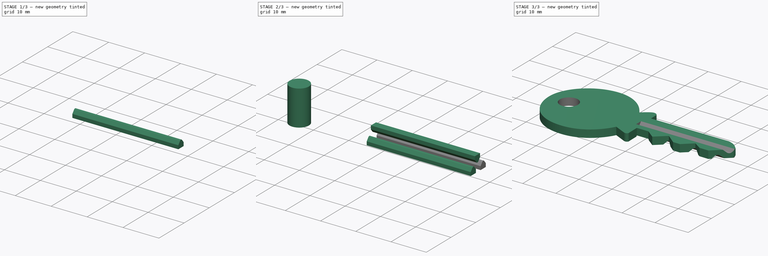
[diagram: build sequence overview — one tinted view per stage of 3, left to right]
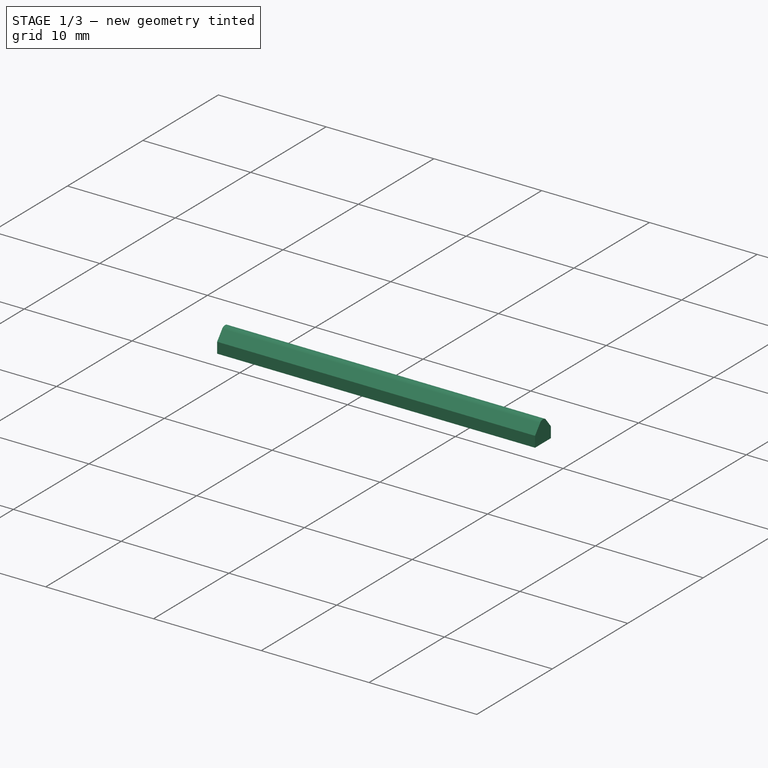
[diagram: stage 1 of 3 — iso view after this stage's code; geometry added in this stage tinted green]
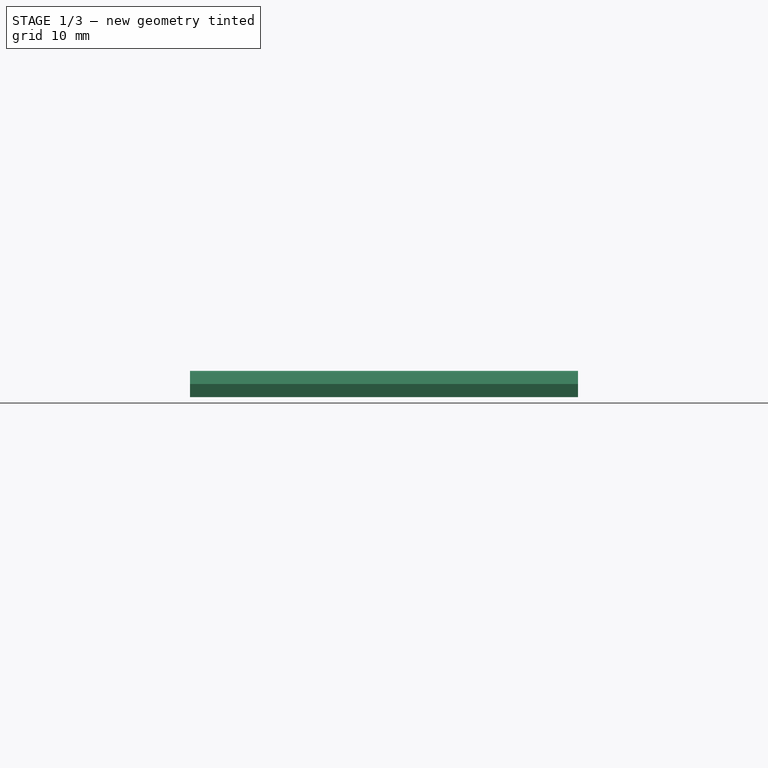
[diagram: stage 1 of 3 — front view after this stage's code; geometry added in this stage tinted green]
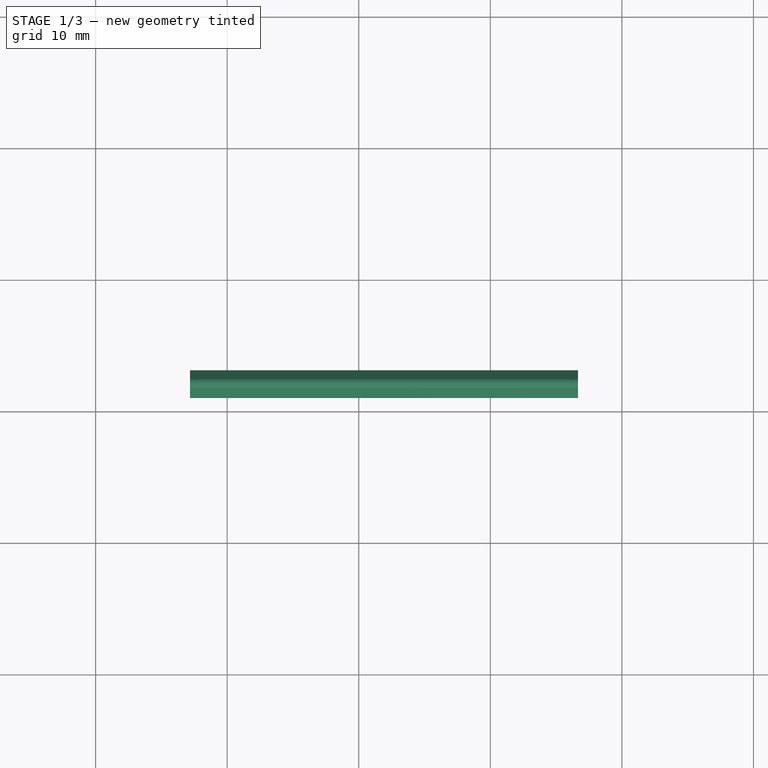
[diagram: stage 1 of 3 — top view after this stage's code; geometry added in this stage tinted green]
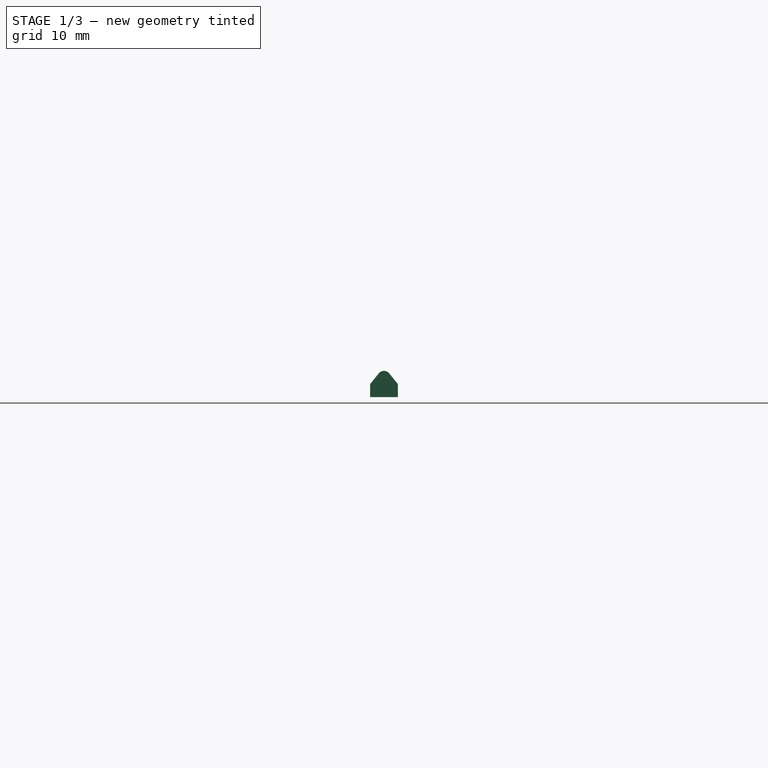
[diagram: stage 1 of 3 — right view after this stage's code; geometry added in this stage tinted green]
FCSTD DOCUMENT  (FreeCAD 0.15R4556 (Git))
Label: key-model-1
License: CreativeCommons Attribution-ShareAlike
LicenseURL: http://creativecommons.org/licenses/by-sa/4.0/
objects: Part::FeaturePython×3, Part::Feature×1, Part::Cylinder×1, Part::Extrusion×1, Sketcher::SketchObject×1, PartDesign::Pad×1, Part::MultiFuse×1, Part::Cut×1
note: 11 computed .brp shape members not serialized (recipe doc carries the construction recipe); baked Part::Feature solids carry a one-line shape summary decoded from their .brp

FEATURE [Sketcher::SketchObject] Sketch  label="slot-1-sketch"
  Placement = pos=(27,0,2.3) rot=(0.57735,0.57735,0.57735;2.0944rad)
  sketch-geometry (7):
    g0: LineSegment StartX=-1.05 StartY=1 StartZ=0 EndX=-1.05 EndY=0 EndZ=0
    g1: LineSegment StartX=-1.05 StartY=0 StartZ=0 EndX=-0.38817 EndY=-0.815157 EndZ=0
    g2: LineSegment StartX=0.38817 StartY=-0.815157 StartZ=0 EndX=1.05 EndY=0 EndZ=0
    g3: LineSegment StartX=1.05 StartY=0 StartZ=0 EndX=1.05 EndY=1 EndZ=0
    g4: LineSegment StartX=1.05 StartY=1 StartZ=0 EndX=-1.05 EndY=1 EndZ=0
    g5: ArcOfCircle CenterX=0 CenterY=-0.5 CenterZ=0 NormalX=0 NormalY=0 NormalZ=1 Radius=0.5 StartAngle=3.82355 EndAngle=5.60123
    g6: LineSegment [constr] StartX=0 StartY=0 StartZ=0 EndX=0 EndY=-1 EndZ=0
  constraints (19):
    c: Vertical(g0)
    c: Coincident(g0,g1)
    c: Coincident(g2,g3)
    c: Vertical(g3)
    c: Coincident(g3,g4)
    c: Coincident(g4,g0)
    c: Horizontal(g4)
    c: Symmetric(g0,g2,g-2)
    c: Tangent(g1,g5) = -1.5708
    c: Tangent(g2,g5) = -1.5708
    c: Symmetric(g1,g2,g-2)
    c: PointOnObject(g0,g-1)
    c: Radius(g5) = 0.5
    c: Vertical(g6)
    c: Coincident(g6,g-1)
    c: PointOnObject(g6,g5)
    c: DistanceY(g6) = -1
    c: DistanceX(g0,g2) = 2.1
    c: DistanceY(g3) = 1
FEATURE [PartDesign::Pad] Pad  label="slot-1"
  Length = 29.5
  Length2 = 100
  Placement = pos=(27,0,2.3) rot=(0.57735,0.57735,0.57735;2.0944rad)
  Sketch = -> Sketch
  Type = 0
FEATURE [Part::FeaturePython] Clone  label="slot-2"  # Draft clone (typed FeaturePython)
  Objects = -> [Pad]
  Placement = pos=(27.1684,2.09101,0) rot=(0.57735,-0.57735,0.57735;4.18879rad)
  Scale = (1,1,1)
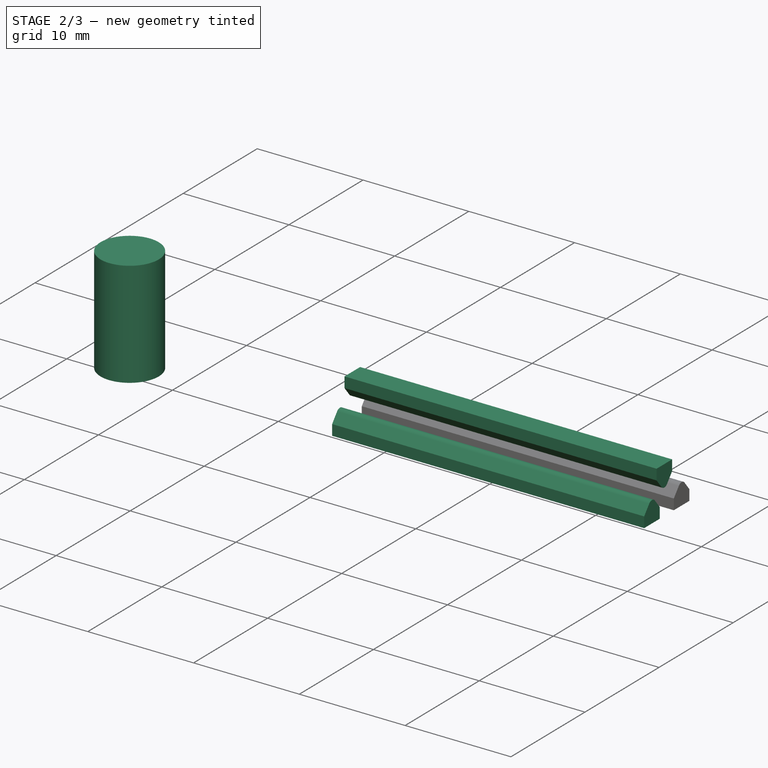
[diagram: stage 2 of 3 — iso view after this stage's code; geometry added in this stage tinted green]
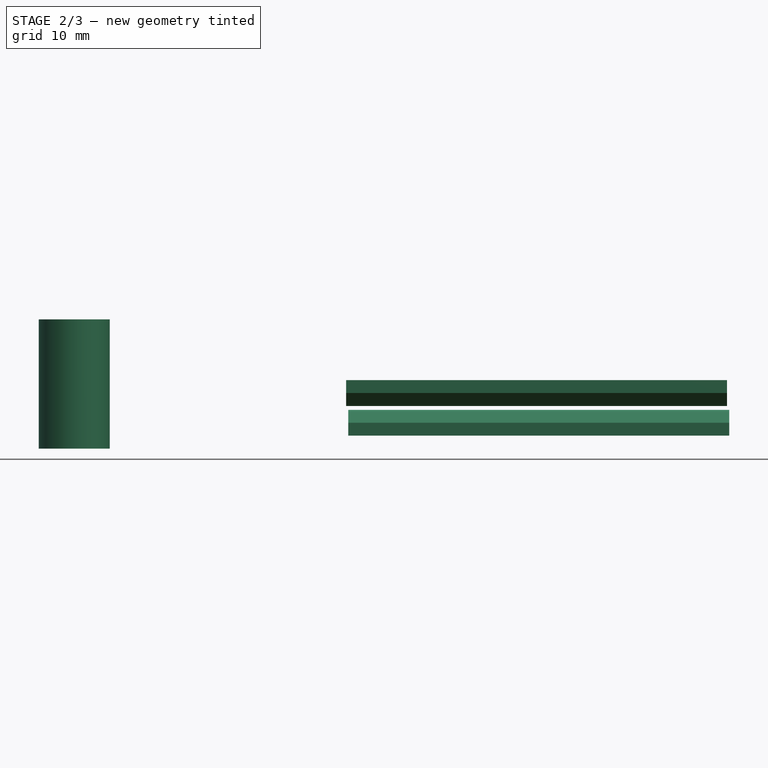
[diagram: stage 2 of 3 — front view after this stage's code; geometry added in this stage tinted green]
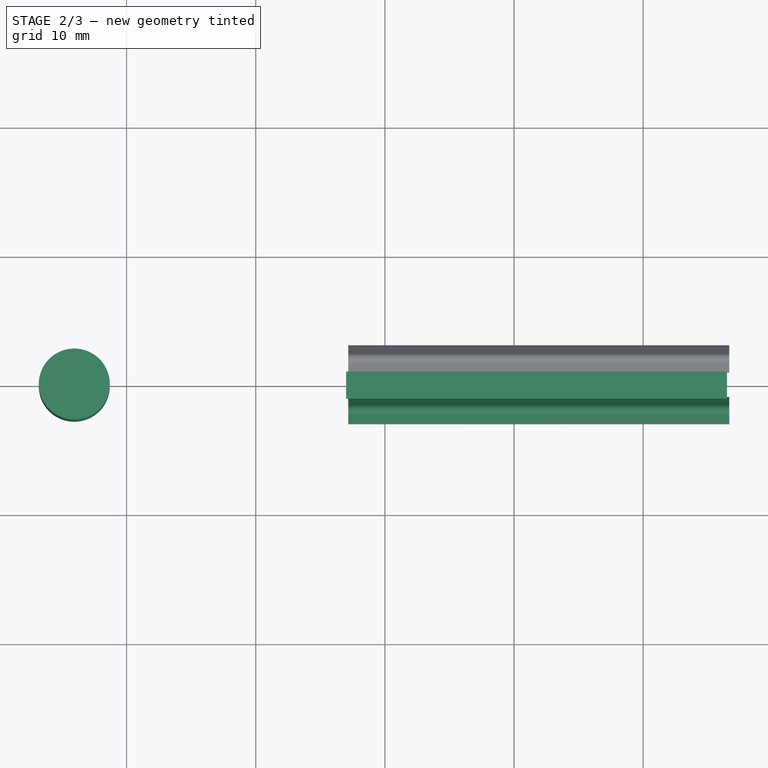
[diagram: stage 2 of 3 — top view after this stage's code; geometry added in this stage tinted green]
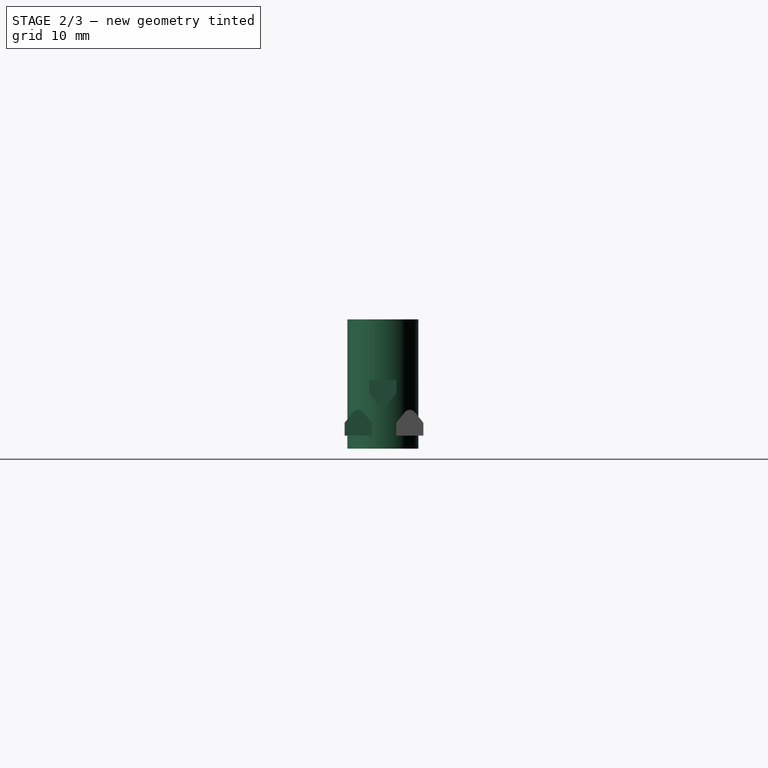
[diagram: stage 2 of 3 — right view after this stage's code; geometry added in this stage tinted green]
FEATURE [Part::Feature] path3087  label="svg-initial-key"
  Placement = pos=(55.7389,0.263486,0) rot=(0,0,1;0rad)
  shape: bbox 131.7 x 63.49 x 2e-07 mm, 0 faces, 0 solids (baked)
FEATURE [Part::Cylinder] Cylinder  label="drill"
  Angle = 360
  Height = 10
  Placement = pos=(5.95,0,-2) rot=(0,0,1;0rad)
  Radius = 2.75
FEATURE [Part::FeaturePython] Clone001  label="slot-3"  # Draft clone (typed FeaturePython)
  Objects = -> [Clone]
  Placement = pos=(27.1684,-1.91299,0) rot=(0.57735,-0.57735,0.57735;4.18879rad)
  Scale = (1,1,1)
FEATURE [Part::MultiFuse] Fusion  label="slots-and-drill"
  Shapes = -> [Pad,Clone,Clone001,Cylinder]
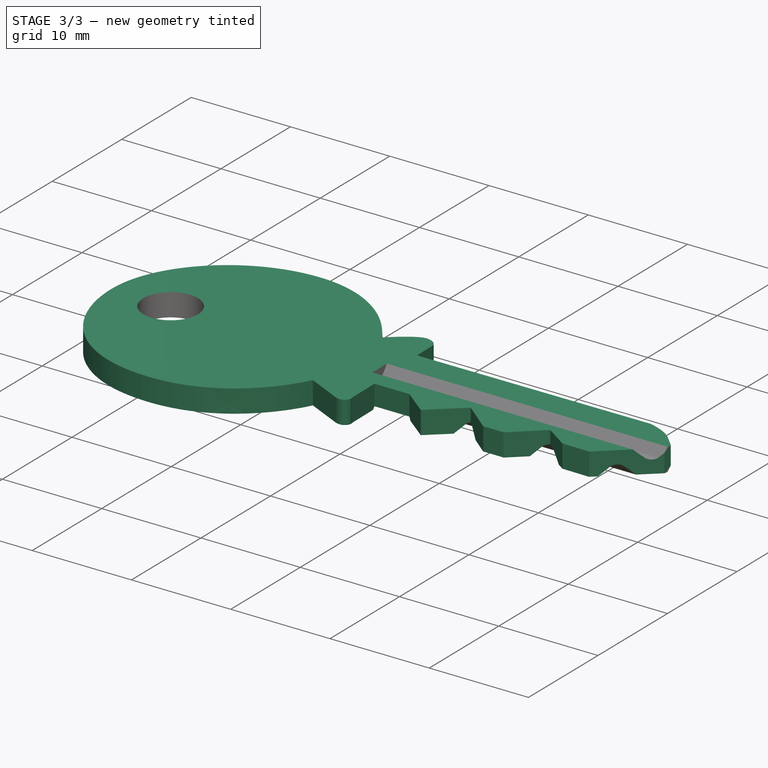
[diagram: stage 3 of 3 — iso view after this stage's code; geometry added in this stage tinted green]
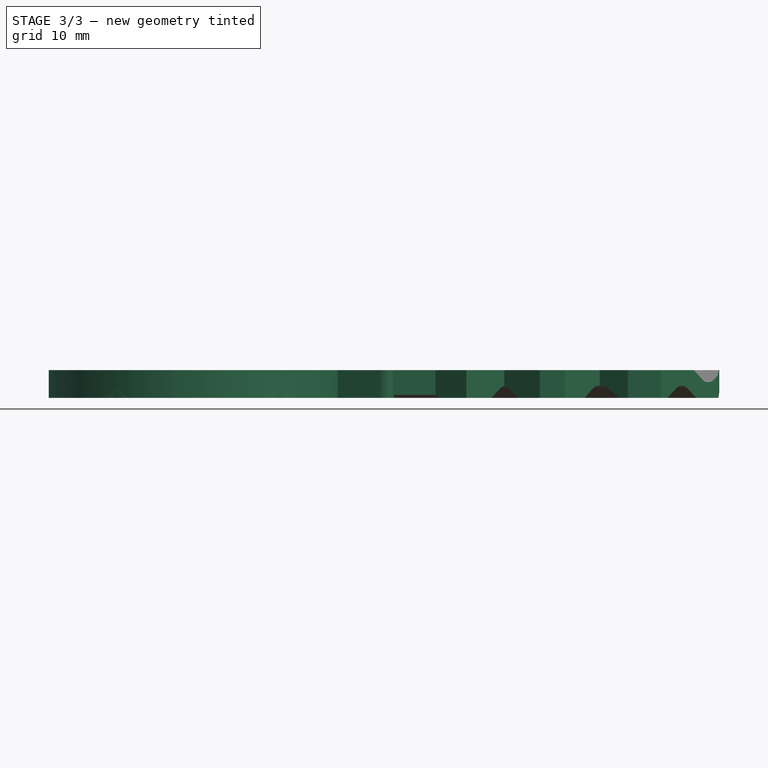
[diagram: stage 3 of 3 — front view after this stage's code; geometry added in this stage tinted green]
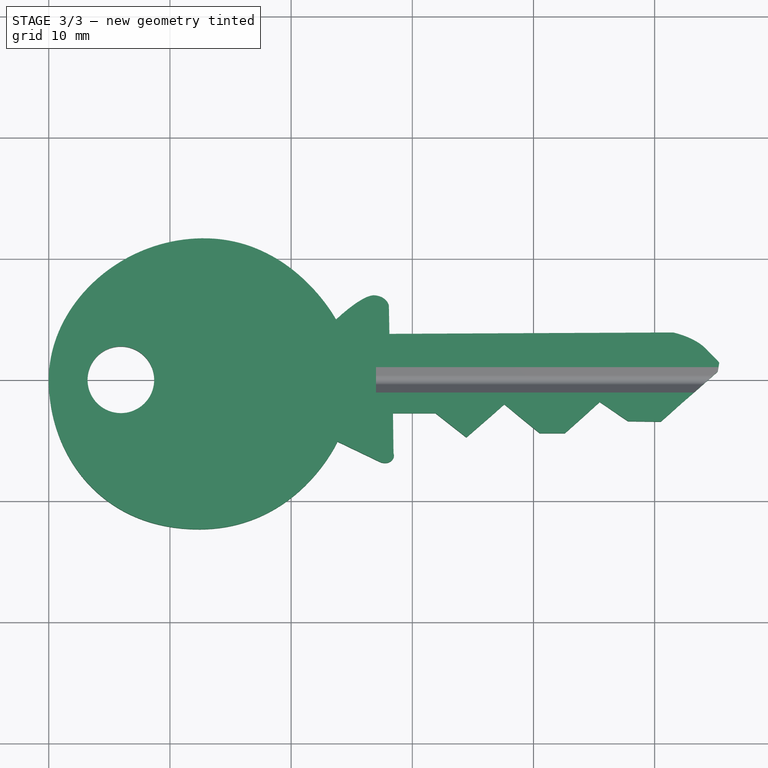
[diagram: stage 3 of 3 — top view after this stage's code; geometry added in this stage tinted green]
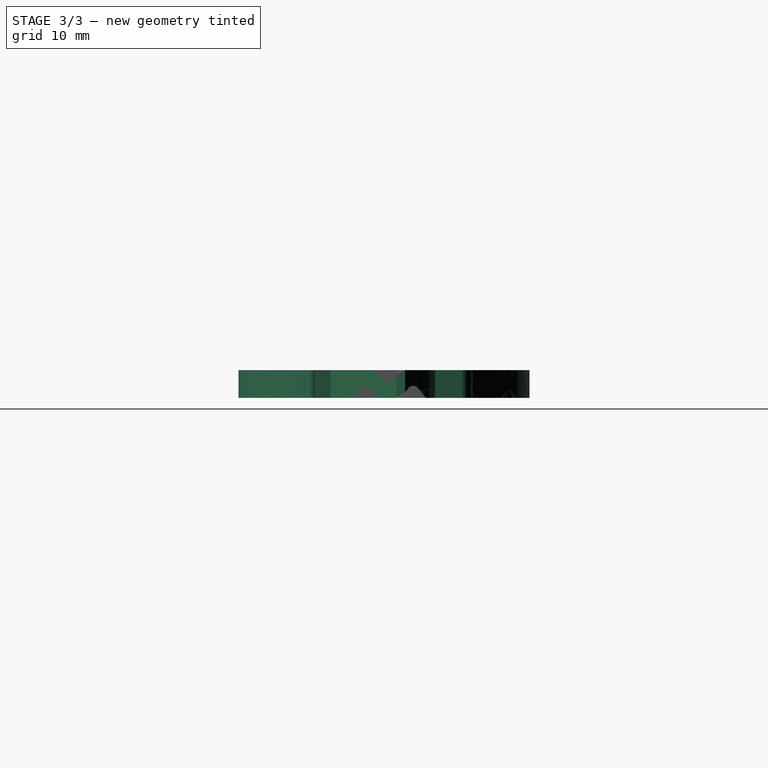
[diagram: stage 3 of 3 — right view after this stage's code; geometry added in this stage tinted green]
FEATURE [Part::FeaturePython] Scale  label="scaled-key"  # Draft clone (typed FeaturePython)
  Objects = -> [path3087]
  Placement = pos=(55.7389,0.263486,0) rot=(0,0,1;0rad)
  Scale = (0.42,0.38,1)
FEATURE [Part::Extrusion] Extrude  label="key-body"
  Base = -> Scale
  Dir = (0,0,2.3)
  Solid = true
FEATURE [Part::Cut] Cut  label="key-model-1"
  Base = -> Extrude
  Tool = -> Fusion
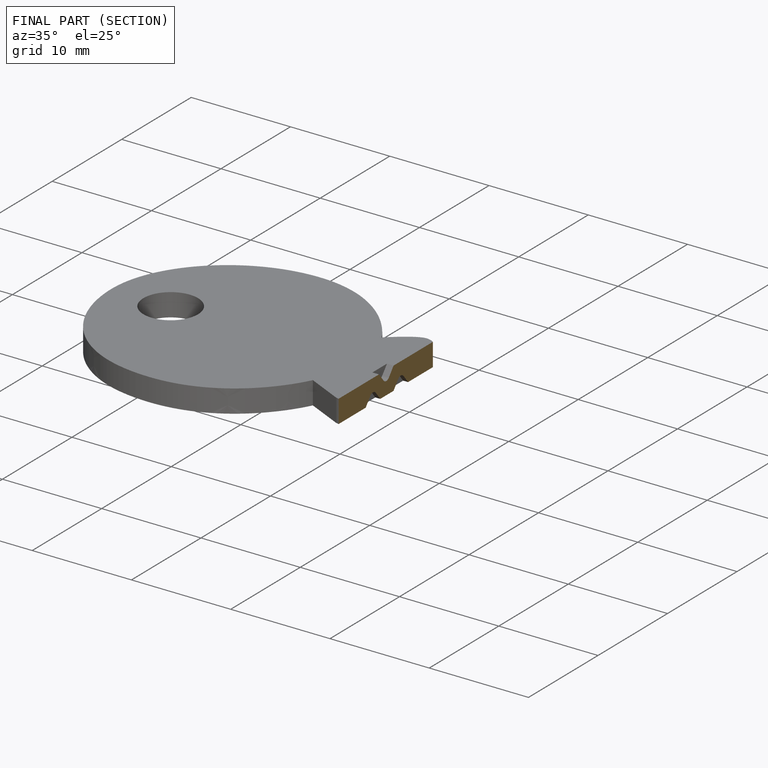
[diagram: finished part — half-section view (interior)]
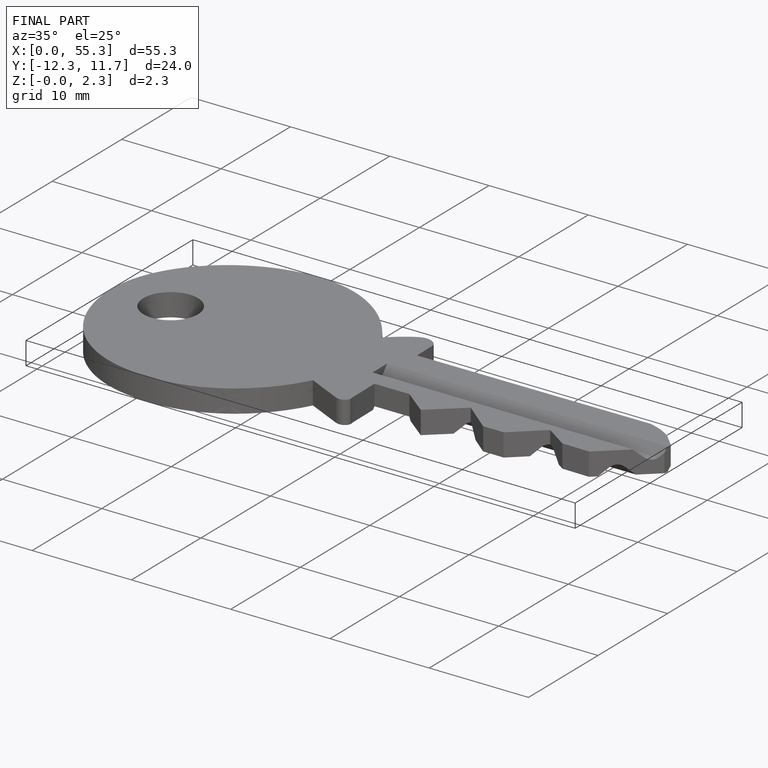
[diagram: finished part — iso view with bounding-box wireframe]
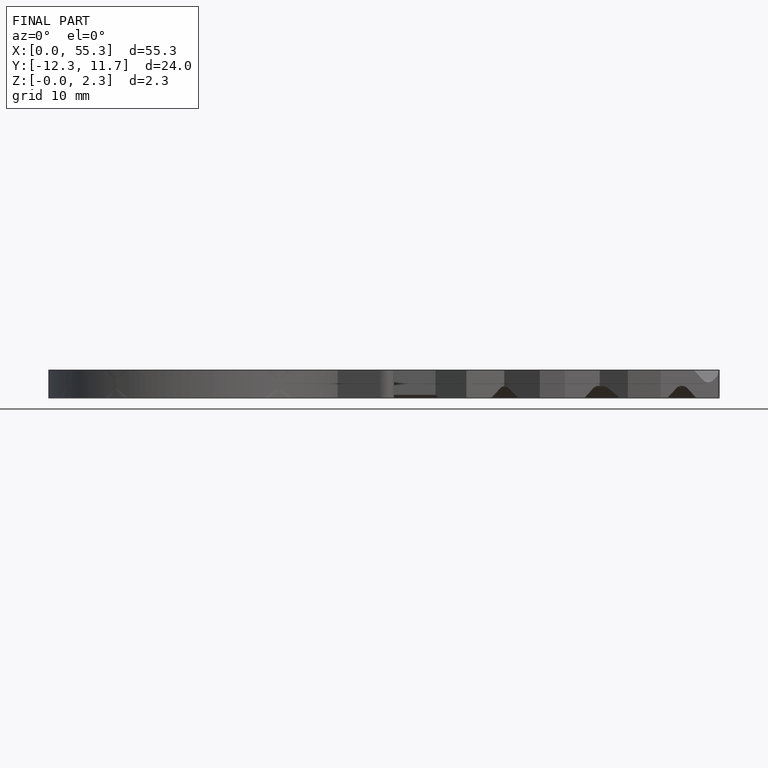
[diagram: finished part — front view with bounding-box wireframe]
